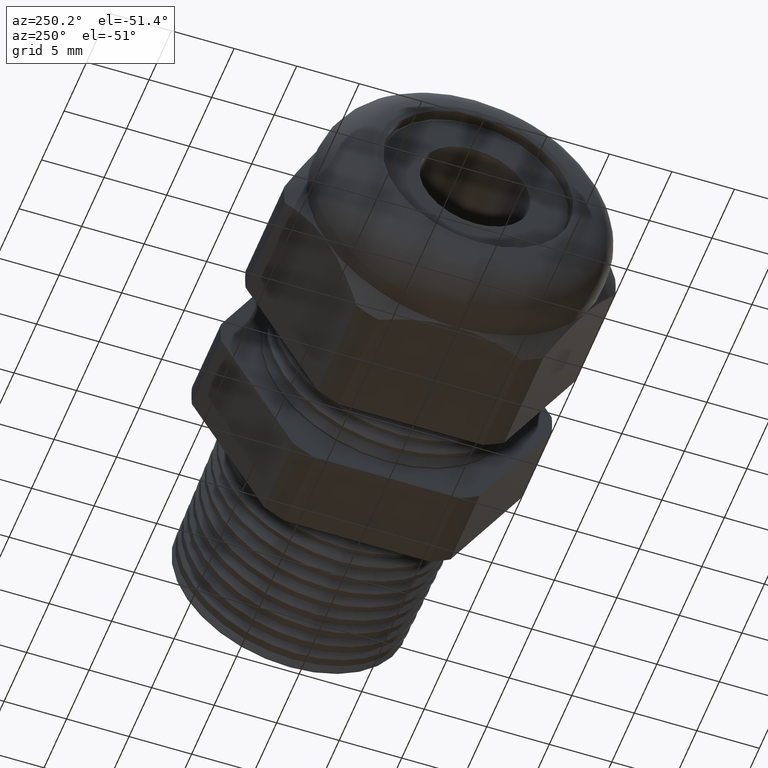
[diagram: clean part render]
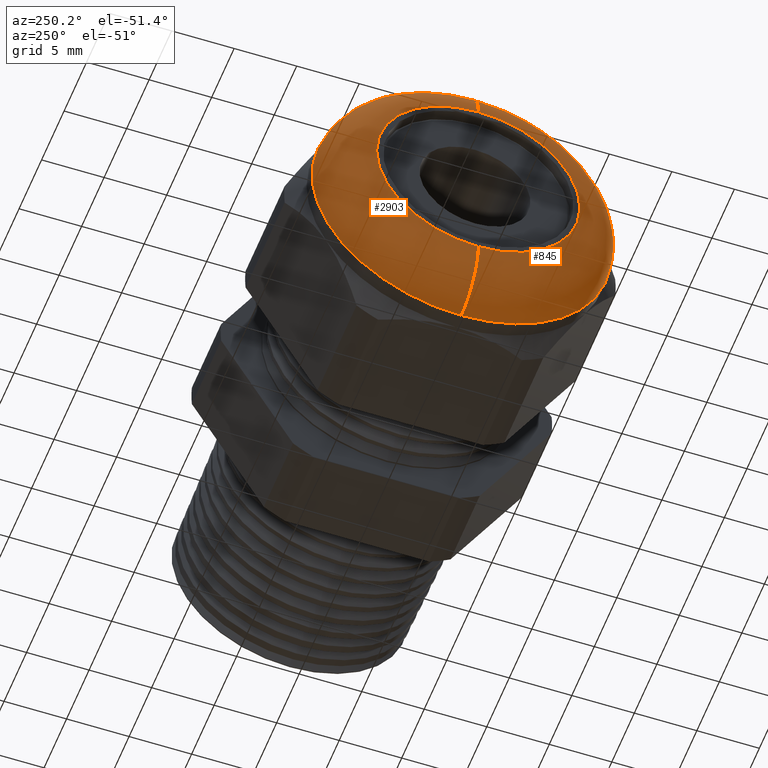
[diagram: same view with one multi-face feature highlighted, each face labeled with its STEP entity id]
A machine part, auxiliary view. The highlighted faces form ONE feature: a constant-radius fillet chain: 2 tangent blend faces with common blend radius 3.81 mm. The faces share edges in the B-rep.
Their STEP definitions:
[1] entity #845 (Torus):
#464 = EDGE_CURVE ( 'NONE', #3004, #2998, #1943, .T. ) ;
#472 = EDGE_CURVE ( 'NONE', #3005, #2913, #1936, .T. ) ;
#845 = ADVANCED_FACE ( 'NONE', ( #2523 ), #2522, .T. ) ;
#846 = EDGE_LOOP ( 'NONE', ( #847, #848, #849, #850 ) ) ;
#847 = ORIENTED_EDGE ( 'NONE', *, *, #3001, .F. ) ;
#848 = ORIENTED_EDGE ( 'NONE', *, *, #472, .F. ) ;
#849 = ORIENTED_EDGE ( 'NONE', *, *, #2999, .T. ) ;
#850 = ORIENTED_EDGE ( 'NONE', *, *, #464, .F. ) ;
#1928 = DIRECTION ( 'NONE',  ( 0.0000000000000000000, 0.0000000000000000000, 1.000000000000000000 ) ) ;
#1929 = DIRECTION ( 'NONE',  ( 1.000000000000000000, 0.0000000000000000000, 0.0000000000000000000 ) ) ;
#1930 = CARTESIAN_POINT ( 'NONE',  ( -1.219999999999999800, 0.0000000000000000000, 0.0000000000000000000 ) ) ;
#1931 = AXIS2_PLACEMENT_3D ( 'NONE', #1930, #1929, #1928 ) ;
#1936 = CIRCLE ( 'NONE', #1931, 0.4699999999999999200 ) ;
#1939 = DIRECTION ( 'NONE',  ( 0.0000000000000000000, 0.0000000000000000000, 1.000000000000000000 ) ) ;
#1940 = DIRECTION ( 'NONE',  ( -1.000000000000000000, 0.0000000000000000000, 0.0000000000000000000 ) ) ;
#1941 = CARTESIAN_POINT ( 'NONE',  ( -1.369999999999999900, 0.0000000000000000000, 0.0000000000000000000 ) ) ;
#1942 = AXIS2_PLACEMENT_3D ( 'NONE', #1941, #1940, #1939 ) ;
#1943 = CIRCLE ( 'NONE', #1942, 0.3199999999999999500 ) ;
#2518 = DIRECTION ( 'NONE',  ( 0.0000000000000000000, 0.0000000000000000000, 1.000000000000000000 ) ) ;
#2519 = DIRECTION ( 'NONE',  ( -1.000000000000000000, 0.0000000000000000000, 0.0000000000000000000 ) ) ;
#2520 = CARTESIAN_POINT ( 'NONE',  ( -1.219999999999999800, 0.0000000000000000000, 0.0000000000000000000 ) ) ;
#2521 = AXIS2_PLACEMENT_3D ( 'NONE', #2520, #2519, #2518 ) ;
#2522 = TOROIDAL_SURFACE ( 'NONE', #2521, 0.3199999999999999500, 0.1499999999999999900 ) ;
#2523 = FACE_OUTER_BOUND ( 'NONE', #846, .T. ) ;
#2913 = VERTEX_POINT ( 'NONE', #3292 ) ;
#2998 = VERTEX_POINT ( 'NONE', #3429 ) ;
#2999 = EDGE_CURVE ( 'NONE', #3005, #2998, #3428, .T. ) ;
#3001 = EDGE_CURVE ( 'NONE', #2913, #3004, #3487, .T. ) ;
#3004 = VERTEX_POINT ( 'NONE', #3477 ) ;
#3005 = VERTEX_POINT ( 'NONE', #3476 ) ;
#3292 = CARTESIAN_POINT ( 'NONE',  ( -1.219999999999999800, 0.0000000000000000000, -0.4699999999999999200 ) ) ;
#3427 = AXIS2_PLACEMENT_3D ( 'NONE', #3490, #3489, #3488 ) ;
#3428 = CIRCLE ( 'NONE', #3427, 0.1499999999999999700 ) ;
#3429 = CARTESIAN_POINT ( 'NONE',  ( -1.369999999999999900, 0.0000000000000000000, 0.3199999999999999500 ) ) ;
#3476 = CARTESIAN_POINT ( 'NONE',  ( -1.219999999999999800, 5.755839955992558400E-017, 0.4699999999999999200 ) ) ;
#3477 = CARTESIAN_POINT ( 'NONE',  ( -1.369999999999999900, 4.837354856632043700E-017, -0.3199999999999999500 ) ) ;
#3483 = DIRECTION ( 'NONE',  ( 0.0000000000000000000, -1.224646799147353200E-016, 1.000000000000000000 ) ) ;
#3484 = DIRECTION ( 'NONE',  ( 0.0000000000000000000, 1.000000000000000000, 1.224646799147353200E-016 ) ) ;
#3485 = CARTESIAN_POINT ( 'NONE',  ( -1.219999999999999800, 3.918869757271529000E-017, -0.3199999999999999500 ) ) ;
#3486 = AXIS2_PLACEMENT_3D ( 'NONE', #3485, #3484, #3483 ) ;
#3487 = CIRCLE ( 'NONE', #3486, 0.1499999999999999700 ) ;
#3488 = DIRECTION ( 'NONE',  ( 0.0000000000000000000, 0.0000000000000000000, -1.000000000000000000 ) ) ;
#3489 = DIRECTION ( 'NONE',  ( 0.0000000000000000000, -1.000000000000000000, 0.0000000000000000000 ) ) ;
#3490 = CARTESIAN_POINT ( 'NONE',  ( -1.219999999999999800, 0.0000000000000000000, 0.3199999999999999500 ) ) ;
[2] entity #2903 (Torus):
#2811 = DIRECTION ( 'NONE',  ( 0.0000000000000000000, 0.0000000000000000000, 1.000000000000000000 ) ) ;
#2812 = DIRECTION ( 'NONE',  ( -1.000000000000000000, 0.0000000000000000000, 0.0000000000000000000 ) ) ;
#2813 = AXIS2_PLACEMENT_3D ( 'NONE', #2816, #2812, #2811 ) ;
#2814 = TOROIDAL_SURFACE ( 'NONE', #2813, 0.3199999999999999500, 0.1499999999999999900 ) ;
#2816 = CARTESIAN_POINT ( 'NONE',  ( -1.219999999999999800, 0.0000000000000000000, 0.0000000000000000000 ) ) ;
#2822 = FACE_OUTER_BOUND ( 'NONE', #2899, .T. ) ;
#2899 = EDGE_LOOP ( 'NONE', ( #3006, #3003, #3000, #2995 ) ) ;
#2903 = ADVANCED_FACE ( 'NONE', ( #2822 ), #2814, .T. ) ;
#2913 = VERTEX_POINT ( 'NONE', #3292 ) ;
#2995 = ORIENTED_EDGE ( 'NONE', *, *, #2999, .F. ) ;
#2996 = EDGE_CURVE ( 'NONE', #2998, #3004, #3440, .T. ) ;
#2998 = VERTEX_POINT ( 'NONE', #3429 ) ;
#2999 = EDGE_CURVE ( 'NONE', #3005, #2998, #3428, .T. ) ;
#3000 = ORIENTED_EDGE ( 'NONE', *, *, #2996, .F. ) ;
#3001 = EDGE_CURVE ( 'NONE', #2913, #3004, #3487, .T. ) ;
#3002 = EDGE_CURVE ( 'NONE', #2913, #3005, #3482, .T. ) ;
#3003 = ORIENTED_EDGE ( 'NONE', *, *, #3001, .T. ) ;
#3004 = VERTEX_POINT ( 'NONE', #3477 ) ;
#3005 = VERTEX_POINT ( 'NONE', #3476 ) ;
#3006 = ORIENTED_EDGE ( 'NONE', *, *, #3002, .F. ) ;
#3292 = CARTESIAN_POINT ( 'NONE',  ( -1.219999999999999800, 0.0000000000000000000, -0.4699999999999999200 ) ) ;
#3427 = AXIS2_PLACEMENT_3D ( 'NONE', #3490, #3489, #3488 ) ;
#3428 = CIRCLE ( 'NONE', #3427, 0.1499999999999999700 ) ;
#3429 = CARTESIAN_POINT ( 'NONE',  ( -1.369999999999999900, 0.0000000000000000000, 0.3199999999999999500 ) ) ;
#3436 = DIRECTION ( 'NONE',  ( 0.0000000000000000000, 0.0000000000000000000, 1.000000000000000000 ) ) ;
#3437 = DIRECTION ( 'NONE',  ( -1.000000000000000000, 0.0000000000000000000, 0.0000000000000000000 ) ) ;
#3438 = CARTESIAN_POINT ( 'NONE',  ( -1.369999999999999900, 0.0000000000000000000, 0.0000000000000000000 ) ) ;
#3439 = AXIS2_PLACEMENT_3D ( 'NONE', #3438, #3437, #3436 ) ;
#3440 = CIRCLE ( 'NONE', #3439, 0.3199999999999999500 ) ;
#3476 = CARTESIAN_POINT ( 'NONE',  ( -1.219999999999999800, 5.755839955992558400E-017, 0.4699999999999999200 ) ) ;
#3477 = CARTESIAN_POINT ( 'NONE',  ( -1.369999999999999900, 4.837354856632043700E-017, -0.3199999999999999500 ) ) ;
#3478 = DIRECTION ( 'NONE',  ( 0.0000000000000000000, 0.0000000000000000000, 1.000000000000000000 ) ) ;
#3479 = DIRECTION ( 'NONE',  ( 1.000000000000000000, 0.0000000000000000000, 0.0000000000000000000 ) ) ;
#3480 = CARTESIAN_POINT ( 'NONE',  ( -1.219999999999999800, 0.0000000000000000000, 0.0000000000000000000 ) ) ;
#3481 = AXIS2_PLACEMENT_3D ( 'NONE', #3480, #3479, #3478 ) ;
#3482 = CIRCLE ( 'NONE', #3481, 0.4699999999999999200 ) ;
#3483 = DIRECTION ( 'NONE',  ( 0.0000000000000000000, -1.224646799147353200E-016, 1.000000000000000000 ) ) ;
#3484 = DIRECTION ( 'NONE',  ( 0.0000000000000000000, 1.000000000000000000, 1.224646799147353200E-016 ) ) ;
#3485 = CARTESIAN_POINT ( 'NONE',  ( -1.219999999999999800, 3.918869757271529000E-017, -0.3199999999999999500 ) ) ;
#3486 = AXIS2_PLACEMENT_3D ( 'NONE', #3485, #3484, #3483 ) ;
#3487 = CIRCLE ( 'NONE', #3486, 0.1499999999999999700 ) ;
#3488 = DIRECTION ( 'NONE',  ( 0.0000000000000000000, 0.0000000000000000000, -1.000000000000000000 ) ) ;
#3489 = DIRECTION ( 'NONE',  ( 0.0000000000000000000, -1.000000000000000000, 0.0000000000000000000 ) ) ;
#3490 = CARTESIAN_POINT ( 'NONE',  ( -1.219999999999999800, 0.0000000000000000000, 0.3199999999999999500 ) ) ;